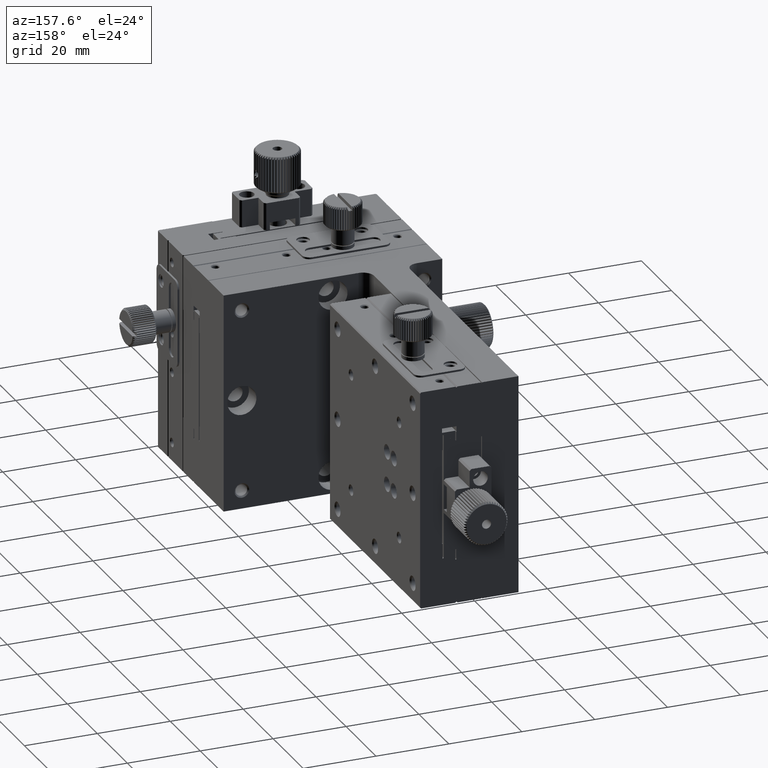
[diagram: clean part render]
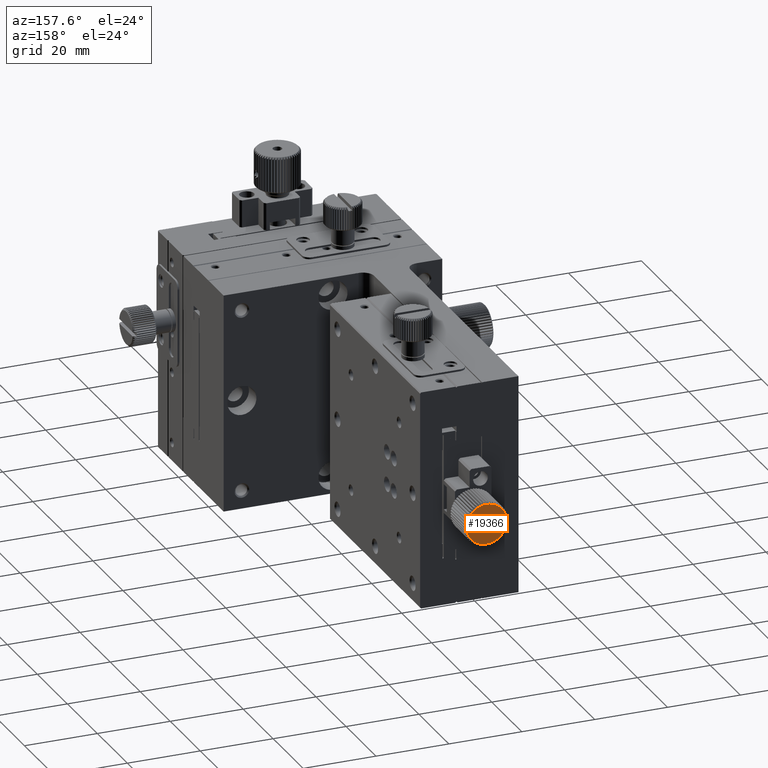
[diagram: same view with one face highlighted and labeled with its STEP entity id]
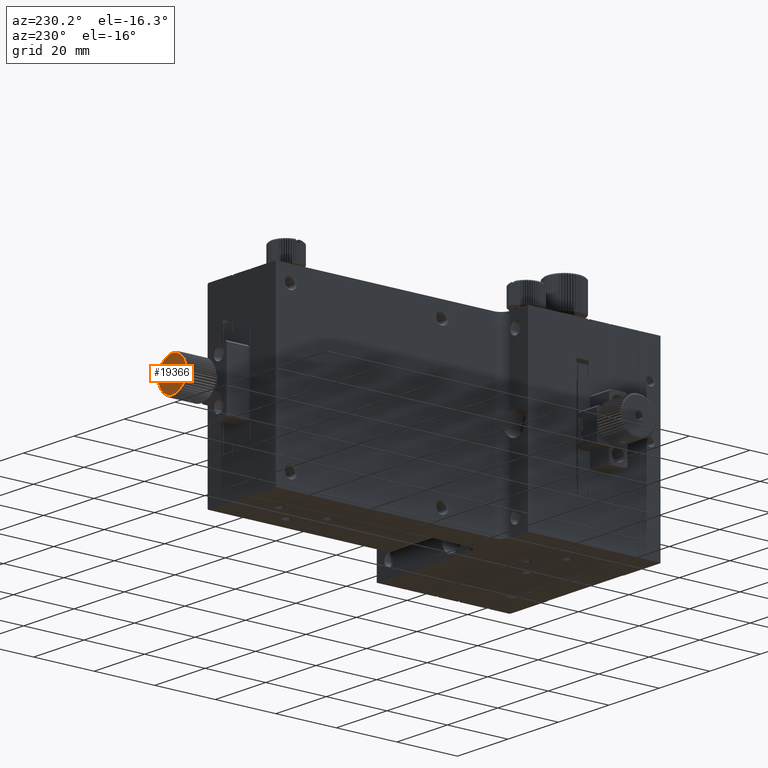
[diagram: same view with one face highlighted and labeled with its STEP entity id]
A machine part, auxiliary view. The second image highlights one B-rep face of the part: STEP entity #19366.
A second angle (auxiliary view) of the same face is appended — the face is thin or edge-on in the first view.
In plain terms, the highlighted planar face has unit normal (0, -1, 0).
Its self-contained STEP definition (entity closure, byte-faithful):
#283 = CARTESIAN_POINT ( 'NONE',  ( 21.51085299360412506, 105.0000000000000000, -30.34534785741382379 ) ) ;
#631 = CARTESIAN_POINT ( 'NONE',  ( 21.51085299360410730, 105.0000000000000000, -29.65465214258629345 ) ) ;
#862 = DIRECTION ( 'NONE',  ( -1.000000000000000000, 0.000000000000000000, 0.000000000000000000 ) ) ;
#906 = DIRECTION ( 'NONE',  ( 0.000000000000000000, -1.000000000000000000, 0.000000000000000000 ) ) ;
#957 = AXIS2_PLACEMENT_3D ( 'NONE', #57053, #36731, #55784 ) ;
#1142 = DIRECTION ( 'NONE',  ( 0.000000000000000000, -1.000000000000000000, 0.000000000000000000 ) ) ;
#1223 = ORIENTED_EDGE ( 'NONE', *, *, #42832, .F. ) ;
#1441 = CIRCLE ( 'NONE', #19774, 5.500000000040472514 ) ;
#1482 = CIRCLE ( 'NONE', #57364, 5.500000000040472514 ) ;
#1669 = DIRECTION ( 'NONE',  ( -1.000000000000000000, 0.000000000000000000, 0.000000000000000000 ) ) ;
#1871 = AXIS2_PLACEMENT_3D ( 'NONE', #43911, #4720, #63031 ) ;
#1987 = DIRECTION ( 'NONE',  ( -1.000000000000000000, 0.000000000000000000, 0.000000000000000000 ) ) ;
#1991 = AXIS2_PLACEMENT_3D ( 'NONE', #8106, #47276, #46325 ) ;
#2122 = DIRECTION ( 'NONE',  ( -1.000000000000000000, 0.000000000000000000, 0.000000000000000000 ) ) ;
#2132 = DIRECTION ( 'NONE',  ( 0.000000000000000000, -1.000000000000000000, 0.000000000000000000 ) ) ;
#2217 = VERTEX_POINT ( 'NONE', #33677 ) ;
#2510 = ORIENTED_EDGE ( 'NONE', *, *, #25387, .F. ) ;
#2563 = CARTESIAN_POINT ( 'NONE',  ( 27.00000000000000000, 105.0000000000000000, -24.49999999995952749 ) ) ;
#2875 = CARTESIAN_POINT ( 'NONE',  ( 32.48914700639588204, 105.0000000000000000, -29.65465214258621884 ) ) ;
#3078 = EDGE_CURVE ( 'NONE', #39777, #57024, #24965, .T. ) ;
#3198 = DIRECTION ( 'NONE',  ( 0.000000000000000000, -1.000000000000000000, 0.000000000000000000 ) ) ;
#3262 = CIRCLE ( 'NONE', #17522, 5.500000000040472514 ) ;
#3792 = AXIS2_PLACEMENT_3D ( 'NONE', #39733, #29232, #62992 ) ;
#3823 = DIRECTION ( 'NONE',  ( -1.000000000000000000, 0.000000000000000000, 0.000000000000000000 ) ) ;
#3868 = VERTEX_POINT ( 'NONE', #24752 ) ;
#4032 = CARTESIAN_POINT ( 'NONE',  ( 28.25000000000000000, 105.0000000000000000, -30.00000000000000000 ) ) ;
#4100 = ORIENTED_EDGE ( 'NONE', *, *, #51603, .F. ) ;
#4106 = VERTEX_POINT ( 'NONE', #27892 ) ;
#4206 = CARTESIAN_POINT ( 'NONE',  ( 27.00000000000000000, 105.0000000000000000, -30.00000000000000000 ) ) ;
#4315 = ORIENTED_EDGE ( 'NONE', *, *, #44663, .F. ) ;
#4675 = VERTEX_POINT ( 'NONE', #19549 ) ;
#4720 = DIRECTION ( 'NONE',  ( 0.000000000000000000, -1.000000000000000000, 0.000000000000000000 ) ) ;
#4791 = VERTEX_POINT ( 'NONE', #50698 ) ;
#5230 = DIRECTION ( 'NONE',  ( 0.000000000000000000, -1.000000000000000000, 0.000000000000000000 ) ) ;
#5472 = AXIS2_PLACEMENT_3D ( 'NONE', #45417, #11682, #54946 ) ;
#5667 = CIRCLE ( 'NONE', #41268, 5.500000000040472514 ) ;
#5784 = CARTESIAN_POINT ( 'NONE',  ( 32.48914700639589626, 105.0000000000000000, -30.34534785741374563 ) ) ;
#5812 = CIRCLE ( 'NONE', #34334, 5.500000000040472514 ) ;
#5973 = DIRECTION ( 'NONE',  ( -1.000000000000000000, 0.000000000000000000, 0.000000000000000000 ) ) ;
#6024 = CIRCLE ( 'NONE', #36568, 5.500000000040472514 ) ;
#6110 = CARTESIAN_POINT ( 'NONE',  ( 23.23499091736447397, 105.0000000000000000, -25.99067254915276592 ) ) ;
#6163 = CIRCLE ( 'NONE', #16405, 5.500000000040472514 ) ;
#6390 = CARTESIAN_POINT ( 'NONE',  ( 27.00000000000000000, 105.0000000000000000, -30.00000000000000000 ) ) ;
#6537 = ORIENTED_EDGE ( 'NONE', *, *, #33836, .F. ) ;
#6630 = EDGE_CURVE ( 'NONE', #55073, #4791, #33450, .T. ) ;
#6762 = DIRECTION ( 'NONE',  ( 0.000000000000000000, -1.000000000000000000, 0.000000000000000000 ) ) ;
#6835 = AXIS2_PLACEMENT_3D ( 'NONE', #21097, #15399, #30024 ) ;
#7305 = VERTEX_POINT ( 'NONE', #18005 ) ;
#7324 = DIRECTION ( 'NONE',  ( 0.000000000000000000, -1.000000000000000000, 0.000000000000000000 ) ) ;
#7376 = AXIS2_PLACEMENT_3D ( 'NONE', #50342, #31254, #57214 ) ;
#7440 = DIRECTION ( 'NONE',  ( -1.000000000000000000, 0.000000000000000000, 0.000000000000000000 ) ) ;
#7493 = CIRCLE ( 'NONE', #53282, 5.500000000040472514 ) ;
#7535 = ORIENTED_EDGE ( 'NONE', *, *, #32235, .F. ) ;
#7598 = DIRECTION ( 'NONE',  ( -1.000000000000000000, 0.000000000000000000, 0.000000000000000000 ) ) ;
#7916 = CARTESIAN_POINT ( 'NONE',  ( 29.02468503978059644, 105.0000000000000000, -24.88622932757696660 ) ) ;
#7963 = AXIS2_PLACEMENT_3D ( 'NONE', #18446, #56597, #36910 ) ;
#7983 = CIRCLE ( 'NONE', #36490, 5.500000000040472514 ) ;
#8023 = VERTEX_POINT ( 'NONE', #29243 ) ;
#8038 = CIRCLE ( 'NONE', #41597, 5.500000000040472514 ) ;
#8106 = CARTESIAN_POINT ( 'NONE',  ( 27.00000000000000000, 105.0000000000000000, -30.00000000000000000 ) ) ;
#8157 = CARTESIAN_POINT ( 'NONE',  ( 27.68933278460875158, 105.0000000000000000, -35.45663085726977926 ) ) ;
#8311 = VERTEX_POINT ( 'NONE', #60709 ) ;
#8599 = DIRECTION ( 'NONE',  ( 0.000000000000000000, -1.000000000000000000, 0.000000000000000000 ) ) ;
#8977 = AXIS2_PLACEMENT_3D ( 'NONE', #43122, #5230, #28192 ) ;
#9057 = EDGE_CURVE ( 'NONE', #21583, #55073, #26199, .T. ) ;
#9111 = VERTEX_POINT ( 'NONE', #7916 ) ;
#9138 = AXIS2_PLACEMENT_3D ( 'NONE', #24483, #43581, #24154 ) ;
#9481 = CARTESIAN_POINT ( 'NONE',  ( 23.23499091736455924, 105.0000000000000000, -34.00932745084731579 ) ) ;
#9698 = AXIS2_PLACEMENT_3D ( 'NONE', #6390, #49123, #39238 ) ;
#9701 = CIRCLE ( 'NONE', #53405, 5.500000000040472514 ) ;
#9760 = VERTEX_POINT ( 'NONE', #4032 ) ;
#9979 = CIRCLE ( 'NONE', #45573, 5.500000000040472514 ) ;
#10114 = DIRECTION ( 'NONE',  ( 0.000000000000000000, -1.000000000000000000, 0.000000000000000000 ) ) ;
#10182 = AXIS2_PLACEMENT_3D ( 'NONE', #17327, #56097, #51661 ) ;
#10230 = ORIENTED_EDGE ( 'NONE', *, *, #30930, .F. ) ;
#10254 = CIRCLE ( 'NONE', #26516, 5.500000000040472514 ) ;
#11178 = VERTEX_POINT ( 'NONE', #6110 ) ;
#11234 = CARTESIAN_POINT ( 'NONE',  ( 27.00000000000000000, 105.0000000000000000, -30.00000000000000000 ) ) ;
#11587 = DIRECTION ( 'NONE',  ( -1.000000000000000000, 0.000000000000000000, 0.000000000000000000 ) ) ;
#11682 = DIRECTION ( 'NONE',  ( 0.000000000000000000, -1.000000000000000000, 0.000000000000000000 ) ) ;
#11786 = ORIENTED_EDGE ( 'NONE', *, *, #26148, .F. ) ;
#12158 = AXIS2_PLACEMENT_3D ( 'NONE', #16700, #6762, #35799 ) ;
#12220 = ORIENTED_EDGE ( 'NONE', *, *, #50752, .F. ) ;
#12261 = ORIENTED_EDGE ( 'NONE', *, *, #45798, .F. ) ;
#12339 = DIRECTION ( 'NONE',  ( -1.000000000000000000, 0.000000000000000000, 0.000000000000000000 ) ) ;
#12433 = CARTESIAN_POINT ( 'NONE',  ( 27.00000000000000000, 105.0000000000000000, -30.00000000000000000 ) ) ;
#12650 = VERTEX_POINT ( 'NONE', #44595 ) ;
#13108 = EDGE_CURVE ( 'NONE', #24260, #28787, #6163, .T. ) ;
#13171 = CIRCLE ( 'NONE', #12158, 5.500000000040472514 ) ;
#13250 = EDGE_CURVE ( 'NONE', #46311, #35921, #60085, .T. ) ;
#13852 = DIRECTION ( 'NONE',  ( -1.000000000000000000, 0.000000000000000000, 0.000000000000000000 ) ) ;
#13915 = CARTESIAN_POINT ( 'NONE',  ( 24.35035479242113254, 105.0000000000000000, -34.81968674027674382 ) ) ;
#14021 = ORIENTED_EDGE ( 'NONE', *, *, #34857, .F. ) ;
#14063 = CIRCLE ( 'NONE', #28306, 5.500000000040472514 ) ;
#14125 = EDGE_CURVE ( 'NONE', #3868, #19853, #33994, .T. ) ;
#14173 = VERTEX_POINT ( 'NONE', #39754 ) ;
#14428 = CARTESIAN_POINT ( 'NONE',  ( 31.23782283529800452, 105.0000000000000000, -26.49416805635638994 ) ) ;
#14583 = ORIENTED_EDGE ( 'NONE', *, *, #29650, .F. ) ;
#14905 = CARTESIAN_POINT ( 'NONE',  ( 27.00000000000000000, 105.0000000000000000, -30.00000000000000000 ) ) ;
#15080 = CARTESIAN_POINT ( 'NONE',  ( 25.63220562058330643, 105.0000000000000000, -35.32720738624669110 ) ) ;
#15237 = CIRCLE ( 'NONE', #1991, 5.500000000040472514 ) ;
#15399 = DIRECTION ( 'NONE',  ( 0.000000000000000000, -1.000000000000000000, 0.000000000000000000 ) ) ;
#15423 = DIRECTION ( 'NONE',  ( 0.000000000000000000, -1.000000000000000000, 0.000000000000000000 ) ) ;
#15721 = ORIENTED_EDGE ( 'NONE', *, *, #54919, .F. ) ;
#15848 = FACE_BOUND ( 'NONE', #41327, .T. ) ;
#15913 = CIRCLE ( 'NONE', #51445, 5.500000000040472514 ) ;
#15998 = CIRCLE ( 'NONE', #59682, 5.500000000040472514 ) ;
#16223 = ORIENTED_EDGE ( 'NONE', *, *, #18228, .F. ) ;
#16265 = CIRCLE ( 'NONE', #9138, 5.500000000040472514 ) ;
#16277 = AXIS2_PLACEMENT_3D ( 'NONE', #16937, #7324, #46506 ) ;
#16405 = AXIS2_PLACEMENT_3D ( 'NONE', #22199, #52641, #57406 ) ;
#16444 = DIRECTION ( 'NONE',  ( 0.000000000000000000, -1.000000000000000000, 0.000000000000000000 ) ) ;
#16492 = EDGE_CURVE ( 'NONE', #42873, #9111, #22811, .T. ) ;
#16570 = AXIS2_PLACEMENT_3D ( 'NONE', #14905, #34315, #62335 ) ;
#16668 = CARTESIAN_POINT ( 'NONE',  ( 27.00000000000000000, 105.0000000000000000, -30.00000000000000000 ) ) ;
#16700 = CARTESIAN_POINT ( 'NONE',  ( 27.00000000000000000, 105.0000000000000000, -30.00000000000000000 ) ) ;
#16936 = CIRCLE ( 'NONE', #25042, 5.500000000040472514 ) ;
#16937 = CARTESIAN_POINT ( 'NONE',  ( 27.00000000000000000, 105.0000000000000000, -30.00000000000000000 ) ) ;
#17000 = VERTEX_POINT ( 'NONE', #8157 ) ;
#17020 = CARTESIAN_POINT ( 'NONE',  ( 21.59742012095247077, 105.0000000000000000, -31.03059723022912664 ) ) ;
#17187 = DIRECTION ( 'NONE',  ( 0.000000000000000000, -1.000000000000000000, 0.000000000000000000 ) ) ;
#17327 = CARTESIAN_POINT ( 'NONE',  ( 27.00000000000000000, 105.0000000000000000, -30.00000000000000000 ) ) ;
#17414 = DIRECTION ( 'NONE',  ( 0.000000000000000000, -1.000000000000000000, 0.000000000000000000 ) ) ;
#17494 = DIRECTION ( 'NONE',  ( -1.000000000000000000, 0.000000000000000000, 0.000000000000000000 ) ) ;
#17522 = AXIS2_PLACEMENT_3D ( 'NONE', #19664, #62979, #33712 ) ;
#17722 = AXIS2_PLACEMENT_3D ( 'NONE', #34979, #34676, #49619 ) ;
#18005 = CARTESIAN_POINT ( 'NONE',  ( 22.02345121140029249, 105.0000000000000000, -32.34178610362518924 ) ) ;
#18202 = CARTESIAN_POINT ( 'NONE',  ( 27.00000000000000000, 105.0000000000000000, -30.00000000000000000 ) ) ;
#18228 = EDGE_CURVE ( 'NONE', #62927, #21583, #5667, .T. ) ;
#18430 = DIRECTION ( 'NONE',  ( -1.000000000000000000, 0.000000000000000000, 0.000000000000000000 ) ) ;
#18446 = CARTESIAN_POINT ( 'NONE',  ( 27.00000000000000000, 105.0000000000000000, -30.00000000000000000 ) ) ;
#18591 = CARTESIAN_POINT ( 'NONE',  ( 22.35619640970478272, 105.0000000000000000, -32.94704737240622450 ) ) ;
#18928 = CARTESIAN_POINT ( 'NONE',  ( 29.02468503978062841, 105.0000000000000000, -35.11377067242300853 ) ) ;
#19107 = ORIENTED_EDGE ( 'NONE', *, *, #16492, .F. ) ;
#19366 = ADVANCED_FACE ( 'NONE', ( #49577, #15848 ), #49273, .F. ) ;
#19549 = CARTESIAN_POINT ( 'NONE',  ( 21.76918916033815421, 105.0000000000000000, -28.30040653092533276 ) ) ;
#19610 = VERTEX_POINT ( 'NONE', #15080 ) ;
#19621 = VERTEX_POINT ( 'NONE', #18591 ) ;
#19664 = CARTESIAN_POINT ( 'NONE',  ( 27.00000000000000000, 105.0000000000000000, -30.00000000000000000 ) ) ;
#19774 = AXIS2_PLACEMENT_3D ( 'NONE', #29623, #24822, #45506 ) ;
#19802 = AXIS2_PLACEMENT_3D ( 'NONE', #37214, #61405, #37545 ) ;
#19853 = VERTEX_POINT ( 'NONE', #2563 ) ;
#19860 = EDGE_CURVE ( 'NONE', #8023, #57666, #16936, .T. ) ;
#20018 = CIRCLE ( 'NONE', #59636, 5.500000000040472514 ) ;
#20062 = CIRCLE ( 'NONE', #59670, 5.500000000040472514 ) ;
#20263 = DIRECTION ( 'NONE',  ( -1.000000000000000000, 0.000000000000000000, 0.000000000000000000 ) ) ;
#20384 = EDGE_CURVE ( 'NONE', #35921, #28312, #20018, .T. ) ;
#20736 = ORIENTED_EDGE ( 'NONE', *, *, #36122, .F. ) ;
#21060 = AXIS2_PLACEMENT_3D ( 'NONE', #4206, #32613, #52287 ) ;
#21097 = CARTESIAN_POINT ( 'NONE',  ( 27.00000000000000000, 105.0000000000000000, -30.00000000000000000 ) ) ;
#21218 = AXIS2_PLACEMENT_3D ( 'NONE', #49354, #25474, #49074 ) ;
#21278 = CARTESIAN_POINT ( 'NONE',  ( 27.00000000000000000, 105.0000000000000000, -30.00000000000000000 ) ) ;
#21338 = ORIENTED_EDGE ( 'NONE', *, *, #27510, .F. ) ;
#21576 = CARTESIAN_POINT ( 'NONE',  ( 27.00000000000000000, 105.0000000000000000, -30.00000000000000000 ) ) ;
#21583 = VERTEX_POINT ( 'NONE', #283 ) ;
#22012 = CARTESIAN_POINT ( 'NONE',  ( 27.00000000000000000, 105.0000000000000000, -30.00000000000000000 ) ) ;
#22116 = EDGE_CURVE ( 'NONE', #57666, #37064, #48645, .T. ) ;
#22199 = CARTESIAN_POINT ( 'NONE',  ( 27.00000000000000000, 105.0000000000000000, -30.00000000000000000 ) ) ;
#22282 = DIRECTION ( 'NONE',  ( 0.000000000000000000, -1.000000000000000000, 0.000000000000000000 ) ) ;
#22331 = DIRECTION ( 'NONE',  ( -1.000000000000000000, 0.000000000000000000, 0.000000000000000000 ) ) ;
#22679 = CARTESIAN_POINT ( 'NONE',  ( 31.64380359029524215, 105.0000000000000000, -27.05295262759380037 ) ) ;
#22811 = CIRCLE ( 'NONE', #19802, 5.500000000040472514 ) ;
#22937 = AXIS2_PLACEMENT_3D ( 'NONE', #44479, #10114, #862 ) ;
#23055 = CARTESIAN_POINT ( 'NONE',  ( 30.23281888763239778, 105.0000000000000000, -34.44959346909494968 ) ) ;
#23378 = AXIS2_PLACEMENT_3D ( 'NONE', #56187, #17414, #31424 ) ;
#23385 = CARTESIAN_POINT ( 'NONE',  ( 27.00000000000000000, 105.0000000000000000, -30.00000000000000000 ) ) ;
#23434 = DIRECTION ( 'NONE',  ( -1.000000000000000000, 0.000000000000000000, 0.000000000000000000 ) ) ;
#23563 = EDGE_CURVE ( 'NONE', #60733, #57667, #57752, .T. ) ;
#23639 = CIRCLE ( 'NONE', #39931, 5.500000000040472514 ) ;
#23706 = CARTESIAN_POINT ( 'NONE',  ( 24.97531496021933251, 105.0000000000000000, -24.88622932757700923 ) ) ;
#24018 = CARTESIAN_POINT ( 'NONE',  ( 31.23782283529803294, 105.0000000000000000, -33.50583194364357809 ) ) ;
#24040 = EDGE_CURVE ( 'NONE', #9111, #14173, #62899, .T. ) ;
#24131 = DIRECTION ( 'NONE',  ( 0.000000000000000000, -1.000000000000000000, 0.000000000000000000 ) ) ;
#24154 = DIRECTION ( 'NONE',  ( -1.000000000000000000, 0.000000000000000000, 0.000000000000000000 ) ) ;
#24220 = AXIS2_PLACEMENT_3D ( 'NONE', #26503, #51611, #1987 ) ;
#24260 = VERTEX_POINT ( 'NONE', #9481 ) ;
#24483 = CARTESIAN_POINT ( 'NONE',  ( 27.00000000000000000, 105.0000000000000000, -30.00000000000000000 ) ) ;
#24486 = ORIENTED_EDGE ( 'NONE', *, *, #50818, .F. ) ;
#24503 = CARTESIAN_POINT ( 'NONE',  ( 30.23281888763236580, 105.0000000000000000, -25.55040653090502545 ) ) ;
#24538 = DIRECTION ( 'NONE',  ( -1.000000000000000000, 0.000000000000000000, 0.000000000000000000 ) ) ;
#24752 = CARTESIAN_POINT ( 'NONE',  ( 27.68933278460870540, 105.0000000000000000, -24.54336914273020653 ) ) ;
#24822 = DIRECTION ( 'NONE',  ( 0.000000000000000000, -1.000000000000000000, 0.000000000000000000 ) ) ;
#24965 = CIRCLE ( 'NONE', #52388, 5.500000000040472514 ) ;
#25042 = AXIS2_PLACEMENT_3D ( 'NONE', #22012, #3198, #22331 ) ;
#25203 = AXIS2_PLACEMENT_3D ( 'NONE', #27993, #46800, #47112 ) ;
#25387 = EDGE_CURVE ( 'NONE', #57024, #44543, #3262, .T. ) ;
#25474 = DIRECTION ( 'NONE',  ( 0.000000000000000000, -1.000000000000000000, 0.000000000000000000 ) ) ;
#25521 = CARTESIAN_POINT ( 'NONE',  ( 25.63220562058319274, 105.0000000000000000, -24.67279261375333732 ) ) ;
#25749 = ORIENTED_EDGE ( 'NONE', *, *, #50856, .F. ) ;
#26148 = EDGE_CURVE ( 'NONE', #58526, #24260, #23639, .T. ) ;
#26186 = ORIENTED_EDGE ( 'NONE', *, *, #32959, .F. ) ;
#26199 = CIRCLE ( 'NONE', #25203, 5.500000000040472514 ) ;
#26216 = DIRECTION ( 'NONE',  ( 0.000000000000000000, -1.000000000000000000, 0.000000000000000000 ) ) ;
#26284 = VERTEX_POINT ( 'NONE', #36909 ) ;
#26503 = CARTESIAN_POINT ( 'NONE',  ( 27.00000000000000000, 105.0000000000000000, -30.00000000000000000 ) ) ;
#26516 = AXIS2_PLACEMENT_3D ( 'NONE', #34848, #26216, #11587 ) ;
#26550 = DIRECTION ( 'NONE',  ( -1.000000000000000000, 0.000000000000000000, 0.000000000000000000 ) ) ;
#26593 = DIRECTION ( 'NONE',  ( 0.000000000000000000, -1.000000000000000000, 0.000000000000000000 ) ) ;
#26733 = ORIENTED_EDGE ( 'NONE', *, *, #3078, .F. ) ;
#26903 = VERTEX_POINT ( 'NONE', #39313 ) ;
#27000 = DIRECTION ( 'NONE',  ( -1.000000000000000000, 0.000000000000000000, 0.000000000000000000 ) ) ;
#27352 = VERTEX_POINT ( 'NONE', #41099 ) ;
#27465 = EDGE_CURVE ( 'NONE', #44248, #42873, #47083, .T. ) ;
#27510 = EDGE_CURVE ( 'NONE', #17000, #26284, #36903, .T. ) ;
#27538 = ORIENTED_EDGE ( 'NONE', *, *, #57858, .F. ) ;
#27892 = CARTESIAN_POINT ( 'NONE',  ( 22.35619640970471522, 105.0000000000000000, -27.05295262759387498 ) ) ;
#27993 = CARTESIAN_POINT ( 'NONE',  ( 27.00000000000000000, 105.0000000000000000, -30.00000000000000000 ) ) ;
#28192 = DIRECTION ( 'NONE',  ( -1.000000000000000000, 0.000000000000000000, 0.000000000000000000 ) ) ;
#28306 = AXIS2_PLACEMENT_3D ( 'NONE', #31329, #51978, #26550 ) ;
#28312 = VERTEX_POINT ( 'NONE', #5784 ) ;
#28375 = CARTESIAN_POINT ( 'NONE',  ( 27.00000000000000000, 105.0000000000000000, -30.00000000000000000 ) ) ;
#28489 = CIRCLE ( 'NONE', #23378, 5.500000000040472514 ) ;
#28769 = DIRECTION ( 'NONE',  ( 1.000000000000000000, 0.000000000000000000, 0.000000000000000000 ) ) ;
#28787 = VERTEX_POINT ( 'NONE', #49981 ) ;
#28824 = EDGE_CURVE ( 'NONE', #32142, #27352, #1441, .T. ) ;
#28918 = ORIENTED_EDGE ( 'NONE', *, *, #13250, .F. ) ;
#28951 = ORIENTED_EDGE ( 'NONE', *, *, #14125, .F. ) ;
#28961 = CARTESIAN_POINT ( 'NONE',  ( 32.40257987904753634, 105.0000000000000000, -28.96940276977090534 ) ) ;
#29021 = ORIENTED_EDGE ( 'NONE', *, *, #47296, .F. ) ;
#29068 = DIRECTION ( 'NONE',  ( 0.000000000000000000, 1.000000000000000000, 0.000000000000000000 ) ) ;
#29232 = DIRECTION ( 'NONE',  ( 0.000000000000000000, -1.000000000000000000, 0.000000000000000000 ) ) ;
#29234 = CARTESIAN_POINT ( 'NONE',  ( 21.59742012095243524, 105.0000000000000000, -28.96940276977097994 ) ) ;
#29243 = CARTESIAN_POINT ( 'NONE',  ( 30.76500908263549405, 105.0000000000000000, -34.00932745084725184 ) ) ;
#29482 = CARTESIAN_POINT ( 'NONE',  ( 31.64380359029527057, 105.0000000000000000, -32.94704737240615344 ) ) ;
#29574 = ORIENTED_EDGE ( 'NONE', *, *, #56268, .F. ) ;
#29623 = CARTESIAN_POINT ( 'NONE',  ( 27.00000000000000000, 105.0000000000000000, -30.00000000000000000 ) ) ;
#29650 = EDGE_CURVE ( 'NONE', #57667, #47354, #43773, .T. ) ;
#29939 = DIRECTION ( 'NONE',  ( -1.000000000000000000, 0.000000000000000000, 0.000000000000000000 ) ) ;
#30024 = DIRECTION ( 'NONE',  ( -1.000000000000000000, 0.000000000000000000, 0.000000000000000000 ) ) ;
#30043 = DIRECTION ( 'NONE',  ( -1.000000000000000000, 0.000000000000000000, 0.000000000000000000 ) ) ;
#30154 = CARTESIAN_POINT ( 'NONE',  ( 32.23081083966182803, 105.0000000000000000, -28.30040653092526171 ) ) ;
#30210 = DIRECTION ( 'NONE',  ( 0.000000000000000000, -1.000000000000000000, 0.000000000000000000 ) ) ;
#30930 = EDGE_CURVE ( 'NONE', #9760, #9760, #55621, .T. ) ;
#30951 = DIRECTION ( 'NONE',  ( -1.000000000000000000, 0.000000000000000000, 0.000000000000000000 ) ) ;
#31254 = DIRECTION ( 'NONE',  ( 0.000000000000000000, -1.000000000000000000, 0.000000000000000000 ) ) ;
#31329 = CARTESIAN_POINT ( 'NONE',  ( 27.00000000000000000, 105.0000000000000000, -30.00000000000000000 ) ) ;
#31353 = EDGE_CURVE ( 'NONE', #53126, #44248, #9979, .T. ) ;
#31424 = DIRECTION ( 'NONE',  ( -1.000000000000000000, 0.000000000000000000, 0.000000000000000000 ) ) ;
#31442 = CARTESIAN_POINT ( 'NONE',  ( 27.00000000000000000, 105.0000000000000000, -30.00000000000000000 ) ) ;
#31444 = EDGE_CURVE ( 'NONE', #11178, #26903, #62887, .T. ) ;
#31775 = VERTEX_POINT ( 'NONE', #38149 ) ;
#32142 = VERTEX_POINT ( 'NONE', #13915 ) ;
#32235 = EDGE_CURVE ( 'NONE', #47354, #51401, #8038, .T. ) ;
#32338 = DIRECTION ( 'NONE',  ( 0.000000000000000000, -1.000000000000000000, 0.000000000000000000 ) ) ;
#32547 = CIRCLE ( 'NONE', #10182, 5.500000000040472514 ) ;
#32613 = DIRECTION ( 'NONE',  ( 0.000000000000000000, -1.000000000000000000, 0.000000000000000000 ) ) ;
#32959 = EDGE_CURVE ( 'NONE', #8311, #11178, #7983, .T. ) ;
#33122 = VERTEX_POINT ( 'NONE', #29234 ) ;
#33384 = AXIS2_PLACEMENT_3D ( 'NONE', #36841, #52079, #23434 ) ;
#33450 = CIRCLE ( 'NONE', #1871, 5.500000000040472514 ) ;
#33677 = CARTESIAN_POINT ( 'NONE',  ( 26.31066721539133013, 105.0000000000000000, -35.45663085726978636 ) ) ;
#33712 = DIRECTION ( 'NONE',  ( -1.000000000000000000, 0.000000000000000000, 0.000000000000000000 ) ) ;
#33836 = EDGE_CURVE ( 'NONE', #19610, #2217, #62020, .T. ) ;
#33893 = CARTESIAN_POINT ( 'NONE',  ( 27.00000000000000000, 105.0000000000000000, -30.00000000000000000 ) ) ;
#33994 = CIRCLE ( 'NONE', #17722, 5.500000000040472514 ) ;
#34039 = CARTESIAN_POINT ( 'NONE',  ( 32.23081083966184224, 105.0000000000000000, -31.69959346907470632 ) ) ;
#34279 = EDGE_CURVE ( 'NONE', #50213, #4675, #28489, .T. ) ;
#34315 = DIRECTION ( 'NONE',  ( 0.000000000000000000, -1.000000000000000000, 0.000000000000000000 ) ) ;
#34334 = AXIS2_PLACEMENT_3D ( 'NONE', #11234, #59280, #30951 ) ;
#34676 = DIRECTION ( 'NONE',  ( 0.000000000000000000, -1.000000000000000000, 0.000000000000000000 ) ) ;
#34848 = CARTESIAN_POINT ( 'NONE',  ( 27.00000000000000000, 105.0000000000000000, -30.00000000000000000 ) ) ;
#34857 = EDGE_CURVE ( 'NONE', #19853, #39777, #5812, .T. ) ;
#34979 = CARTESIAN_POINT ( 'NONE',  ( 27.00000000000000000, 105.0000000000000000, -30.00000000000000000 ) ) ;
#35457 = DIRECTION ( 'NONE',  ( 0.000000000000000000, -1.000000000000000000, 0.000000000000000000 ) ) ;
#35799 = DIRECTION ( 'NONE',  ( -1.000000000000000000, 0.000000000000000000, 0.000000000000000000 ) ) ;
#35921 = VERTEX_POINT ( 'NONE', #38308 ) ;
#35993 = ORIENTED_EDGE ( 'NONE', *, *, #58785, .F. ) ;
#36122 = EDGE_CURVE ( 'NONE', #7305, #19621, #57795, .T. ) ;
#36228 = ORIENTED_EDGE ( 'NONE', *, *, #20384, .F. ) ;
#36490 = AXIS2_PLACEMENT_3D ( 'NONE', #56926, #24131, #43557 ) ;
#36568 = AXIS2_PLACEMENT_3D ( 'NONE', #49530, #26593, #7440 ) ;
#36580 = CARTESIAN_POINT ( 'NONE',  ( 27.00000000000000000, 105.0000000000000000, -30.00000000000000000 ) ) ;
#36591 = DIRECTION ( 'NONE',  ( 0.000000000000000000, -1.000000000000000000, 0.000000000000000000 ) ) ;
#36731 = DIRECTION ( 'NONE',  ( 0.000000000000000000, -1.000000000000000000, 0.000000000000000000 ) ) ;
#36755 = ORIENTED_EDGE ( 'NONE', *, *, #19860, .F. ) ;
#36792 = EDGE_CURVE ( 'NONE', #19621, #58526, #37415, .T. ) ;
#36841 = CARTESIAN_POINT ( 'NONE',  ( 27.00000000000000000, 105.0000000000000000, -30.00000000000000000 ) ) ;
#36882 = ORIENTED_EDGE ( 'NONE', *, *, #6630, .F. ) ;
#36896 = CARTESIAN_POINT ( 'NONE',  ( 27.00000000000000000, 105.0000000000000000, -30.00000000000000000 ) ) ;
#36903 = CIRCLE ( 'NONE', #16570, 5.500000000040472514 ) ;
#36909 = CARTESIAN_POINT ( 'NONE',  ( 28.36779437941676818, 105.0000000000000000, -35.32720738624666268 ) ) ;
#36910 = DIRECTION ( 'NONE',  ( -1.000000000000000000, 0.000000000000000000, 0.000000000000000000 ) ) ;
#36930 = EDGE_CURVE ( 'NONE', #4791, #7305, #62873, .T. ) ;
#37064 = VERTEX_POINT ( 'NONE', #29482 ) ;
#37170 = CIRCLE ( 'NONE', #9698, 5.500000000040472514 ) ;
#37214 = CARTESIAN_POINT ( 'NONE',  ( 27.00000000000000000, 105.0000000000000000, -30.00000000000000000 ) ) ;
#37415 = CIRCLE ( 'NONE', #3792, 5.500000000040472514 ) ;
#37441 = CIRCLE ( 'NONE', #8977, 5.500000000040472514 ) ;
#37545 = DIRECTION ( 'NONE',  ( -1.000000000000000000, 0.000000000000000000, 0.000000000000000000 ) ) ;
#37774 = ORIENTED_EDGE ( 'NONE', *, *, #36792, .F. ) ;
#38149 = CARTESIAN_POINT ( 'NONE',  ( 31.97654878859972172, 105.0000000000000000, -32.34178610362511819 ) ) ;
#38308 = CARTESIAN_POINT ( 'NONE',  ( 32.40257987904754344, 105.0000000000000000, -31.03059723022905203 ) ) ;
#39204 = CARTESIAN_POINT ( 'NONE',  ( 22.02345121140024986, 105.0000000000000000, -27.65821389637491379 ) ) ;
#39238 = DIRECTION ( 'NONE',  ( -1.000000000000000000, 0.000000000000000000, 0.000000000000000000 ) ) ;
#39313 = CARTESIAN_POINT ( 'NONE',  ( 22.76217716470194219, 105.0000000000000000, -26.49416805635644678 ) ) ;
#39340 = ORIENTED_EDGE ( 'NONE', *, *, #13108, .F. ) ;
#39441 = DIRECTION ( 'NONE',  ( -1.000000000000000000, 0.000000000000000000, 0.000000000000000000 ) ) ;
#39733 = CARTESIAN_POINT ( 'NONE',  ( 27.00000000000000000, 105.0000000000000000, -30.00000000000000000 ) ) ;
#39736 = AXIS2_PLACEMENT_3D ( 'NONE', #58425, #1142, #39987 ) ;
#39754 = CARTESIAN_POINT ( 'NONE',  ( 28.36779437941673265, 105.0000000000000000, -24.67279261375332311 ) ) ;
#39762 = DIRECTION ( 'NONE',  ( -1.000000000000000000, 0.000000000000000000, 0.000000000000000000 ) ) ;
#39777 = VERTEX_POINT ( 'NONE', #41125 ) ;
#39809 = DIRECTION ( 'NONE',  ( 0.000000000000000000, -1.000000000000000000, 0.000000000000000000 ) ) ;
#39920 = EDGE_CURVE ( 'NONE', #52394, #45844, #20062, .T. ) ;
#39931 = AXIS2_PLACEMENT_3D ( 'NONE', #48750, #39809, #29939 ) ;
#39987 = DIRECTION ( 'NONE',  ( -1.000000000000000000, 0.000000000000000000, 0.000000000000000000 ) ) ;
#40138 = AXIS2_PLACEMENT_3D ( 'NONE', #21278, #44194, #39441 ) ;
#40205 = ORIENTED_EDGE ( 'NONE', *, *, #52782, .F. ) ;
#40444 = EDGE_CURVE ( 'NONE', #2217, #12650, #15913, .T. ) ;
#40675 = DIRECTION ( 'NONE',  ( 0.000000000000000000, -1.000000000000000000, 0.000000000000000000 ) ) ;
#40689 = ORIENTED_EDGE ( 'NONE', *, *, #23563, .F. ) ;
#41099 = CARTESIAN_POINT ( 'NONE',  ( 24.97531496021943909, 105.0000000000000000, -35.11377067242303696 ) ) ;
#41125 = CARTESIAN_POINT ( 'NONE',  ( 26.31066721539121289, 105.0000000000000000, -24.54336914273021719 ) ) ;
#41268 = AXIS2_PLACEMENT_3D ( 'NONE', #21576, #2132, #12339 ) ;
#41327 = EDGE_LOOP ( 'NONE', ( #10230 ) ) ;
#41334 = DIRECTION ( 'NONE',  ( 0.000000000000000000, -1.000000000000000000, 0.000000000000000000 ) ) ;
#41418 = ORIENTED_EDGE ( 'NONE', *, *, #36930, .F. ) ;
#41597 = AXIS2_PLACEMENT_3D ( 'NONE', #16668, #35457, #1669 ) ;
#42135 = ORIENTED_EDGE ( 'NONE', *, *, #31353, .F. ) ;
#42458 = VERTEX_POINT ( 'NONE', #2875 ) ;
#42832 = EDGE_CURVE ( 'NONE', #51401, #53126, #15998, .T. ) ;
#42873 = VERTEX_POINT ( 'NONE', #57218 ) ;
#43037 = ORIENTED_EDGE ( 'NONE', *, *, #39920, .F. ) ;
#43122 = CARTESIAN_POINT ( 'NONE',  ( 27.00000000000000000, 105.0000000000000000, -30.00000000000000000 ) ) ;
#43437 = CARTESIAN_POINT ( 'NONE',  ( 31.97654878859972172, 105.0000000000000000, -27.65821389637483563 ) ) ;
#43557 = DIRECTION ( 'NONE',  ( -1.000000000000000000, 0.000000000000000000, 0.000000000000000000 ) ) ;
#43581 = DIRECTION ( 'NONE',  ( 0.000000000000000000, -1.000000000000000000, 0.000000000000000000 ) ) ;
#43660 = ORIENTED_EDGE ( 'NONE', *, *, #22116, .F. ) ;
#43697 = ORIENTED_EDGE ( 'NONE', *, *, #46423, .F. ) ;
#43773 = CIRCLE ( 'NONE', #39736, 5.500000000040472514 ) ;
#43907 = ORIENTED_EDGE ( 'NONE', *, *, #27465, .F. ) ;
#43911 = CARTESIAN_POINT ( 'NONE',  ( 27.00000000000000000, 105.0000000000000000, -30.00000000000000000 ) ) ;
#44194 = DIRECTION ( 'NONE',  ( 0.000000000000000000, -1.000000000000000000, 0.000000000000000000 ) ) ;
#44248 = VERTEX_POINT ( 'NONE', #24503 ) ;
#44479 = CARTESIAN_POINT ( 'NONE',  ( 27.00000000000000000, 105.0000000000000000, -35.50000000000000000 ) ) ;
#44526 = CARTESIAN_POINT ( 'NONE',  ( 27.00000000000000000, 105.0000000000000000, -30.00000000000000000 ) ) ;
#44543 = VERTEX_POINT ( 'NONE', #23706 ) ;
#44595 = CARTESIAN_POINT ( 'NONE',  ( 27.00000000000000000, 105.0000000000000000, -35.50000000004047251 ) ) ;
#44663 = EDGE_CURVE ( 'NONE', #28312, #42458, #13171, .T. ) ;
#44757 = EDGE_CURVE ( 'NONE', #26284, #45943, #48754, .T. ) ;
#44790 = CIRCLE ( 'NONE', #62053, 5.500000000040472514 ) ;
#45216 = ORIENTED_EDGE ( 'NONE', *, *, #24040, .F. ) ;
#45417 = CARTESIAN_POINT ( 'NONE',  ( 27.00000000000000000, 105.0000000000000000, -30.00000000000000000 ) ) ;
#45506 = DIRECTION ( 'NONE',  ( -1.000000000000000000, 0.000000000000000000, 0.000000000000000000 ) ) ;
#45573 = AXIS2_PLACEMENT_3D ( 'NONE', #28375, #8599, #24538 ) ;
#45727 = EDGE_CURVE ( 'NONE', #45844, #8023, #44790, .T. ) ;
#45798 = EDGE_CURVE ( 'NONE', #42458, #58505, #6024, .T. ) ;
#45844 = VERTEX_POINT ( 'NONE', #23055 ) ;
#45943 = VERTEX_POINT ( 'NONE', #18928 ) ;
#46311 = VERTEX_POINT ( 'NONE', #34039 ) ;
#46325 = DIRECTION ( 'NONE',  ( -1.000000000000000000, 0.000000000000000000, 0.000000000000000000 ) ) ;
#46423 = EDGE_CURVE ( 'NONE', #44543, #54416, #16265, .T. ) ;
#46506 = DIRECTION ( 'NONE',  ( -1.000000000000000000, 0.000000000000000000, 0.000000000000000000 ) ) ;
#46800 = DIRECTION ( 'NONE',  ( 0.000000000000000000, -1.000000000000000000, 0.000000000000000000 ) ) ;
#47083 = CIRCLE ( 'NONE', #7376, 5.500000000040472514 ) ;
#47112 = DIRECTION ( 'NONE',  ( -1.000000000000000000, 0.000000000000000000, 0.000000000000000000 ) ) ;
#47276 = DIRECTION ( 'NONE',  ( 0.000000000000000000, -1.000000000000000000, 0.000000000000000000 ) ) ;
#47296 = EDGE_CURVE ( 'NONE', #45943, #52394, #10254, .T. ) ;
#47354 = VERTEX_POINT ( 'NONE', #22679 ) ;
#47473 = DIRECTION ( 'NONE',  ( 0.000000000000000000, -1.000000000000000000, 0.000000000000000000 ) ) ;
#48645 = CIRCLE ( 'NONE', #21060, 5.500000000040472514 ) ;
#48750 = CARTESIAN_POINT ( 'NONE',  ( 27.00000000000000000, 105.0000000000000000, -30.00000000000000000 ) ) ;
#48754 = CIRCLE ( 'NONE', #957, 5.500000000040472514 ) ;
#48935 = AXIS2_PLACEMENT_3D ( 'NONE', #33893, #15423, #30043 ) ;
#49074 = DIRECTION ( 'NONE',  ( -1.000000000000000000, 0.000000000000000000, 0.000000000000000000 ) ) ;
#49123 = DIRECTION ( 'NONE',  ( 0.000000000000000000, -1.000000000000000000, 0.000000000000000000 ) ) ;
#49273 = PLANE ( 'NONE',  #22937 ) ;
#49354 = CARTESIAN_POINT ( 'NONE',  ( 27.00000000000000000, 105.0000000000000000, -30.00000000000000000 ) ) ;
#49530 = CARTESIAN_POINT ( 'NONE',  ( 27.00000000000000000, 105.0000000000000000, -30.00000000000000000 ) ) ;
#49577 = FACE_OUTER_BOUND ( 'NONE', #57584, .T. ) ;
#49619 = DIRECTION ( 'NONE',  ( -1.000000000000000000, 0.000000000000000000, 0.000000000000000000 ) ) ;
#49623 = CARTESIAN_POINT ( 'NONE',  ( 27.00000000000000000, 105.0000000000000000, -30.00000000000000000 ) ) ;
#49981 = CARTESIAN_POINT ( 'NONE',  ( 23.76718111236766617, 105.0000000000000000, -34.44959346909499232 ) ) ;
#50213 = VERTEX_POINT ( 'NONE', #39204 ) ;
#50342 = CARTESIAN_POINT ( 'NONE',  ( 27.00000000000000000, 105.0000000000000000, -30.00000000000000000 ) ) ;
#50480 = EDGE_CURVE ( 'NONE', #33122, #62927, #7493, .T. ) ;
#50698 = CARTESIAN_POINT ( 'NONE',  ( 21.76918916033818618, 105.0000000000000000, -31.69959346907477027 ) ) ;
#50752 = EDGE_CURVE ( 'NONE', #26903, #4106, #56349, .T. ) ;
#50818 = EDGE_CURVE ( 'NONE', #54416, #8311, #55359, .T. ) ;
#50856 = EDGE_CURVE ( 'NONE', #27352, #19610, #1482, .T. ) ;
#51258 = DIRECTION ( 'NONE',  ( 0.000000000000000000, -1.000000000000000000, 0.000000000000000000 ) ) ;
#51401 = VERTEX_POINT ( 'NONE', #14428 ) ;
#51445 = AXIS2_PLACEMENT_3D ( 'NONE', #31442, #40675, #2122 ) ;
#51603 = EDGE_CURVE ( 'NONE', #31775, #46311, #9701, .T. ) ;
#51611 = DIRECTION ( 'NONE',  ( 0.000000000000000000, -1.000000000000000000, 0.000000000000000000 ) ) ;
#51661 = DIRECTION ( 'NONE',  ( -1.000000000000000000, 0.000000000000000000, 0.000000000000000000 ) ) ;
#51978 = DIRECTION ( 'NONE',  ( 0.000000000000000000, -1.000000000000000000, 0.000000000000000000 ) ) ;
#52079 = DIRECTION ( 'NONE',  ( 0.000000000000000000, -1.000000000000000000, 0.000000000000000000 ) ) ;
#52253 = ORIENTED_EDGE ( 'NONE', *, *, #44757, .F. ) ;
#52287 = DIRECTION ( 'NONE',  ( -1.000000000000000000, 0.000000000000000000, 0.000000000000000000 ) ) ;
#52388 = AXIS2_PLACEMENT_3D ( 'NONE', #44526, #906, #39762 ) ;
#52394 = VERTEX_POINT ( 'NONE', #59043 ) ;
#52618 = CARTESIAN_POINT ( 'NONE',  ( 27.00000000000000000, 105.0000000000000000, -30.00000000000000000 ) ) ;
#52641 = DIRECTION ( 'NONE',  ( 0.000000000000000000, -1.000000000000000000, 0.000000000000000000 ) ) ;
#52782 = EDGE_CURVE ( 'NONE', #4675, #33122, #37170, .T. ) ;
#53126 = VERTEX_POINT ( 'NONE', #61677 ) ;
#53282 = AXIS2_PLACEMENT_3D ( 'NONE', #12433, #22282, #7598 ) ;
#53405 = AXIS2_PLACEMENT_3D ( 'NONE', #56634, #51258, #61440 ) ;
#53759 = ORIENTED_EDGE ( 'NONE', *, *, #40444, .F. ) ;
#54269 = CIRCLE ( 'NONE', #5472, 5.500000000040472514 ) ;
#54416 = VERTEX_POINT ( 'NONE', #58449 ) ;
#54919 = EDGE_CURVE ( 'NONE', #4106, #50213, #37441, .T. ) ;
#54946 = DIRECTION ( 'NONE',  ( -1.000000000000000000, 0.000000000000000000, 0.000000000000000000 ) ) ;
#55073 = VERTEX_POINT ( 'NONE', #17020 ) ;
#55158 = EDGE_CURVE ( 'NONE', #12650, #17000, #14063, .T. ) ;
#55359 = CIRCLE ( 'NONE', #40138, 5.500000000040472514 ) ;
#55621 = CIRCLE ( 'NONE', #61782, 1.250000000000001110 ) ;
#55784 = DIRECTION ( 'NONE',  ( -1.000000000000000000, 0.000000000000000000, 0.000000000000000000 ) ) ;
#56097 = DIRECTION ( 'NONE',  ( 0.000000000000000000, -1.000000000000000000, 0.000000000000000000 ) ) ;
#56187 = CARTESIAN_POINT ( 'NONE',  ( 27.00000000000000000, 105.0000000000000000, -30.00000000000000000 ) ) ;
#56268 = EDGE_CURVE ( 'NONE', #58505, #60733, #15237, .T. ) ;
#56306 = ORIENTED_EDGE ( 'NONE', *, *, #28824, .F. ) ;
#56349 = CIRCLE ( 'NONE', #60478, 5.500000000040472514 ) ;
#56597 = DIRECTION ( 'NONE',  ( 0.000000000000000000, -1.000000000000000000, 0.000000000000000000 ) ) ;
#56634 = CARTESIAN_POINT ( 'NONE',  ( 27.00000000000000000, 105.0000000000000000, -30.00000000000000000 ) ) ;
#56926 = CARTESIAN_POINT ( 'NONE',  ( 27.00000000000000000, 105.0000000000000000, -30.00000000000000000 ) ) ;
#56957 = ORIENTED_EDGE ( 'NONE', *, *, #45727, .F. ) ;
#57024 = VERTEX_POINT ( 'NONE', #25521 ) ;
#57053 = CARTESIAN_POINT ( 'NONE',  ( 27.00000000000000000, 105.0000000000000000, -30.00000000000000000 ) ) ;
#57214 = DIRECTION ( 'NONE',  ( -1.000000000000000000, 0.000000000000000000, 0.000000000000000000 ) ) ;
#57218 = CARTESIAN_POINT ( 'NONE',  ( 29.64964520757889943, 105.0000000000000000, -25.18031325972326684 ) ) ;
#57364 = AXIS2_PLACEMENT_3D ( 'NONE', #23385, #32338, #13852 ) ;
#57406 = DIRECTION ( 'NONE',  ( -1.000000000000000000, 0.000000000000000000, 0.000000000000000000 ) ) ;
#57584 = EDGE_LOOP ( 'NONE', ( #61067, #53759, #6537, #25749, #56306, #27538, #39340, #11786, #37774, #20736, #41418, #36882, #62384, #16223, #58124, #40205, #58853, #15721, #12220, #61346, #26186, #24486, #43697, #2510, #26733, #14021, #28951, #60800, #45216, #19107, #43907, #42135, #1223, #7535, #14583, #40689, #29574, #12261, #4315, #36228, #28918, #4100, #35993, #43660, #36755, #56957, #43037, #29021, #52253, #21338 ) ) ;
#57666 = VERTEX_POINT ( 'NONE', #24018 ) ;
#57667 = VERTEX_POINT ( 'NONE', #43437 ) ;
#57752 = CIRCLE ( 'NONE', #24220, 5.500000000040472514 ) ;
#57795 = CIRCLE ( 'NONE', #6835, 5.500000000040472514 ) ;
#57858 = EDGE_CURVE ( 'NONE', #28787, #32142, #32547, .T. ) ;
#57927 = CARTESIAN_POINT ( 'NONE',  ( 22.76217716470201324, 105.0000000000000000, -33.50583194364363493 ) ) ;
#58007 = AXIS2_PLACEMENT_3D ( 'NONE', #36580, #41334, #27000 ) ;
#58124 = ORIENTED_EDGE ( 'NONE', *, *, #50480, .F. ) ;
#58425 = CARTESIAN_POINT ( 'NONE',  ( 27.00000000000000000, 105.0000000000000000, -30.00000000000000000 ) ) ;
#58449 = CARTESIAN_POINT ( 'NONE',  ( 24.35035479242103662, 105.0000000000000000, -25.18031325972329881 ) ) ;
#58505 = VERTEX_POINT ( 'NONE', #28961 ) ;
#58526 = VERTEX_POINT ( 'NONE', #57927 ) ;
#58785 = EDGE_CURVE ( 'NONE', #37064, #31775, #61069, .T. ) ;
#58853 = ORIENTED_EDGE ( 'NONE', *, *, #34279, .F. ) ;
#59043 = CARTESIAN_POINT ( 'NONE',  ( 29.64964520757893851, 105.0000000000000000, -34.81968674027670829 ) ) ;
#59280 = DIRECTION ( 'NONE',  ( 0.000000000000000000, -1.000000000000000000, 0.000000000000000000 ) ) ;
#59636 = AXIS2_PLACEMENT_3D ( 'NONE', #61090, #36591, #17494 ) ;
#59670 = AXIS2_PLACEMENT_3D ( 'NONE', #18202, #47473, #3823 ) ;
#59682 = AXIS2_PLACEMENT_3D ( 'NONE', #36896, #17187, #18430 ) ;
#60085 = CIRCLE ( 'NONE', #48935, 5.500000000040472514 ) ;
#60336 = CARTESIAN_POINT ( 'NONE',  ( 27.00000000000000000, 105.0000000000000000, -30.00000000000000000 ) ) ;
#60478 = AXIS2_PLACEMENT_3D ( 'NONE', #49623, #30210, #5973 ) ;
#60697 = EDGE_CURVE ( 'NONE', #14173, #3868, #54269, .T. ) ;
#60709 = CARTESIAN_POINT ( 'NONE',  ( 23.76718111236757025, 105.0000000000000000, -25.55040653090507519 ) ) ;
#60733 = VERTEX_POINT ( 'NONE', #30154 ) ;
#60800 = ORIENTED_EDGE ( 'NONE', *, *, #60697, .F. ) ;
#61067 = ORIENTED_EDGE ( 'NONE', *, *, #55158, .F. ) ;
#61069 = CIRCLE ( 'NONE', #58007, 5.500000000040472514 ) ;
#61090 = CARTESIAN_POINT ( 'NONE',  ( 27.00000000000000000, 105.0000000000000000, -30.00000000000000000 ) ) ;
#61346 = ORIENTED_EDGE ( 'NONE', *, *, #31444, .F. ) ;
#61405 = DIRECTION ( 'NONE',  ( 0.000000000000000000, -1.000000000000000000, 0.000000000000000000 ) ) ;
#61440 = DIRECTION ( 'NONE',  ( -1.000000000000000000, 0.000000000000000000, 0.000000000000000000 ) ) ;
#61677 = CARTESIAN_POINT ( 'NONE',  ( 30.76500908263546918, 105.0000000000000000, -25.99067254915270908 ) ) ;
#61782 = AXIS2_PLACEMENT_3D ( 'NONE', #52618, #29068, #28769 ) ;
#62020 = CIRCLE ( 'NONE', #16277, 5.500000000040472514 ) ;
#62053 = AXIS2_PLACEMENT_3D ( 'NONE', #60336, #16444, #20263 ) ;
#62335 = DIRECTION ( 'NONE',  ( -1.000000000000000000, 0.000000000000000000, 0.000000000000000000 ) ) ;
#62384 = ORIENTED_EDGE ( 'NONE', *, *, #9057, .F. ) ;
#62873 = CIRCLE ( 'NONE', #33384, 5.500000000040472514 ) ;
#62887 = CIRCLE ( 'NONE', #21218, 5.500000000040472514 ) ;
#62899 = CIRCLE ( 'NONE', #7963, 5.500000000040472514 ) ;
#62927 = VERTEX_POINT ( 'NONE', #631 ) ;
#62979 = DIRECTION ( 'NONE',  ( 0.000000000000000000, -1.000000000000000000, 0.000000000000000000 ) ) ;
#62992 = DIRECTION ( 'NONE',  ( -1.000000000000000000, 0.000000000000000000, 0.000000000000000000 ) ) ;
#63031 = DIRECTION ( 'NONE',  ( -1.000000000000000000, 0.000000000000000000, 0.000000000000000000 ) ) ;